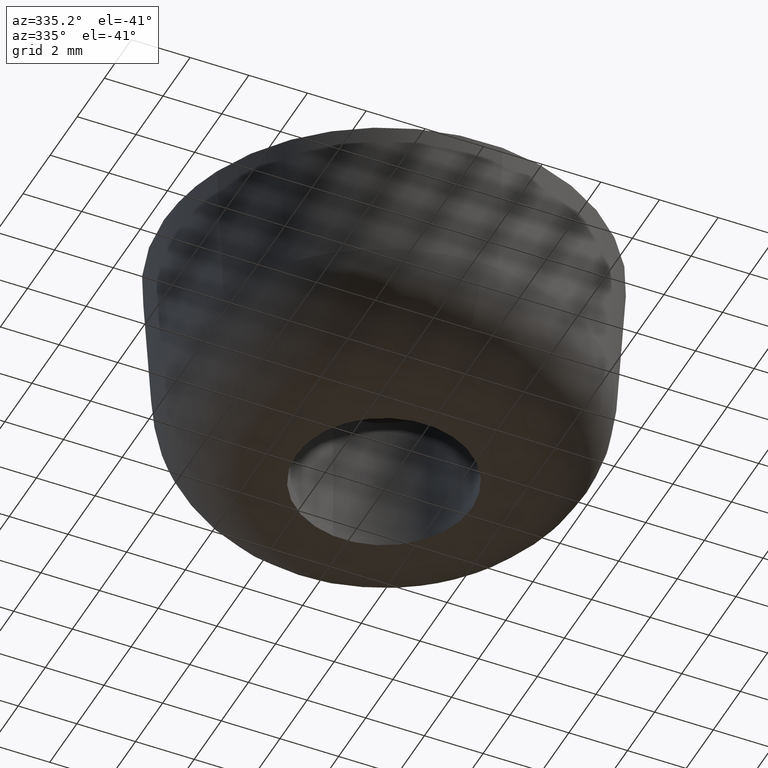
[diagram: clean part render]
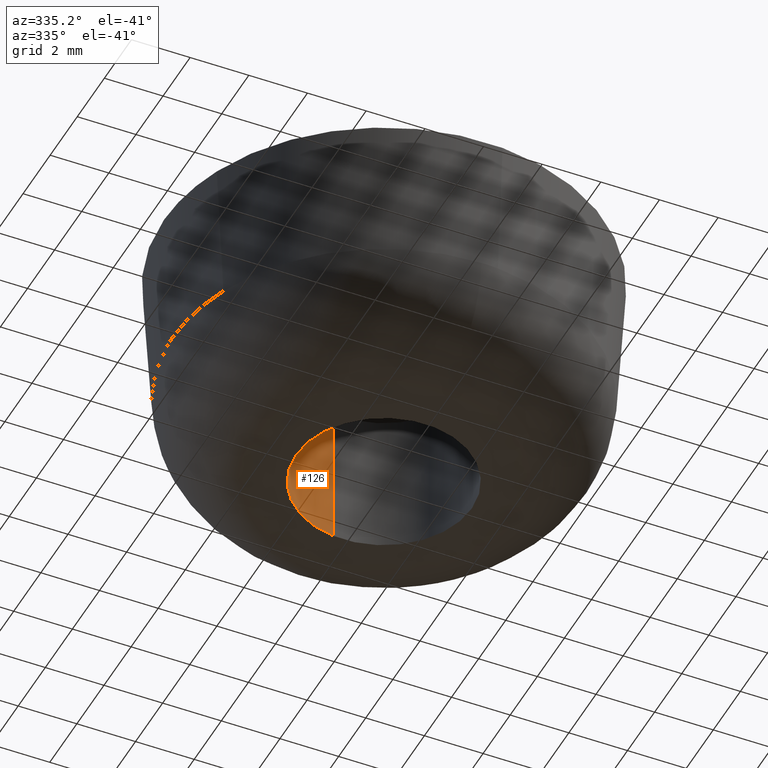
[diagram: same view with one face highlighted and labeled with its STEP entity id]
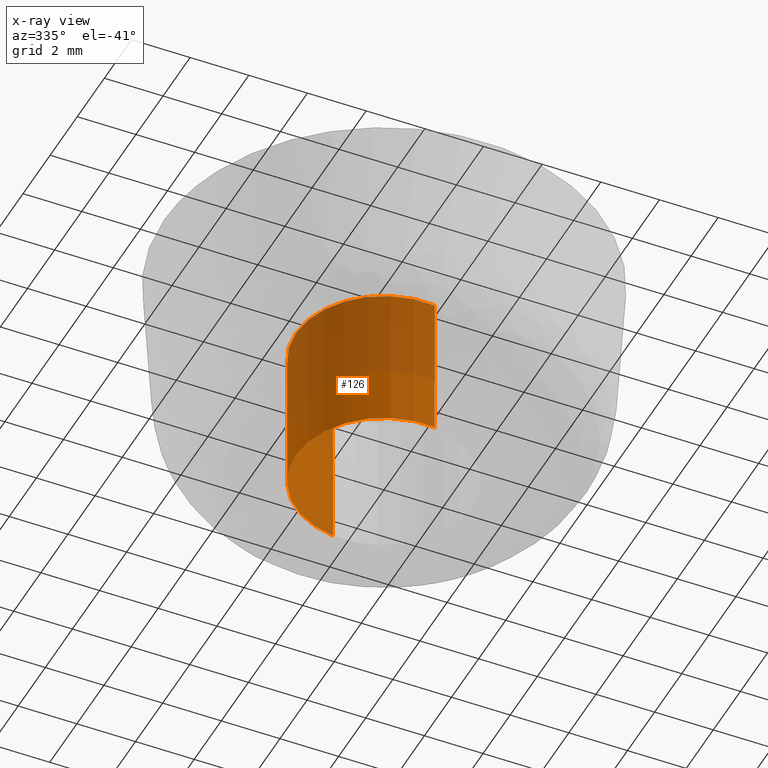
[diagram: x-ray of the same camera — body ghosted, the highlighted face saturated]
A machine part, auxiliary view. The second image highlights one B-rep face of the part: STEP entity #126.
The next image is the same camera in x-ray: the body ghosted, the highlighted face saturated — about 53% of this face is hidden behind the body in this view.
In plain terms, the highlighted cylindrical surface (partial cylindrical patch) has radius 3 mm, axis along (0, 0, 1).
Its self-contained STEP definition (entity closure, byte-faithful):
#126=ADVANCED_FACE('',(#283),#282,.F.);
#282=CYLINDRICAL_SURFACE('',#464,3.00000000000E+000);
#283=FACE_OUTER_BOUND('',#465,.T.);
#461=CARTESIAN_POINT('',(3.64937661851E-014,4.60760898924E-015,5.12500000000E+000));
#462=DIRECTION('',(1.40314912240E-014,1.51878360787E-015,1.00000000000E+000));
#463=DIRECTION('',(1.18034234657E-001,-9.93009526364E-001,-1.48029736617E-016));
#464=AXIS2_PLACEMENT_3D('',#461,#462,#463);
#465=EDGE_LOOP('',(#631,#632,#633,#634,#635,#636));
#631=ORIENTED_EDGE('',*,*,#736,.F.);
#632=ORIENTED_EDGE('',*,*,#738,.F.);
#633=ORIENTED_EDGE('',*,*,#739,.F.);
#634=ORIENTED_EDGE('',*,*,#715,.T.);
#635=ORIENTED_EDGE('',*,*,#717,.T.);
#636=ORIENTED_EDGE('',*,*,#740,.T.);
#715=EDGE_CURVE('',#974,#975,#976,.T.);
#717=EDGE_CURVE('',#975,#982,#989,.T.);
#736=EDGE_CURVE('',#1121,#1122,#1123,.T.);
#738=EDGE_CURVE('',#1129,#1121,#1136,.T.);
#739=EDGE_CURVE('',#974,#1129,#1142,.T.);
#740=EDGE_CURVE('',#982,#1122,#1148,.T.);
#974=VERTEX_POINT('',#1352);
#975=VERTEX_POINT('',#1353);
#976=CIRCLE('',#1357,2.99999999999E+000);
#982=VERTEX_POINT('',#1358);
#989=CIRCLE('',#1366,2.99999999999E+000);
#1121=VERTEX_POINT('',#1457);
#1122=VERTEX_POINT('',#1458);
#1123=CIRCLE('',#1462,2.99999950427E+000);
#1129=VERTEX_POINT('',#1463);
#1136=CIRCLE('',#1471,2.99999950427E+000);
#1142=(BOUNDED_CURVE() B_SPLINE_CURVE(1,(#1472,#1473),.UNSPECIFIED.,.F.,.F.) B_SPLINE_CURVE_WITH_KNOTS((2,2),(8.33333383004E-002,9.16666664635E-001),.UNSPECIFIED.) CURVE() GEOMETRIC_REPRESENTATION_ITEM() RATIONAL_B_SPLINE_CURVE((1.00000000000E+000,1.00000000000E+000)) REPRESENTATION_ITEM('') );
#1148=(BOUNDED_CURVE() B_SPLINE_CURVE(1,(#1474,#1475),.UNSPECIFIED.,.F.,.F.) B_SPLINE_CURVE_WITH_KNOTS((2,2),(8.33333333333E-002,9.16666666667E-001),.UNSPECIFIED.) CURVE() GEOMETRIC_REPRESENTATION_ITEM() RATIONAL_B_SPLINE_CURVE((7.50000000000E-001,7.50000000000E-001)) REPRESENTATION_ITEM('') );
#1352=CARTESIAN_POINT('',(3.54101614556E-001,-2.97902870857E+000,8.80027462343E-016));
#1353=CARTESIAN_POINT('',(-2.99999999999E+000,-1.33226762955E-015,8.01356165399E-015));
#1354=CARTESIAN_POINT('',(6.96820379176E-012,3.16680015544E-012,6.60074611712E-016));
#1355=DIRECTION('',(-2.45116234743E-015,-3.65190638225E-016,-1.00000000000E+000));
#1356=DIRECTION('',(-1.00000000000E+000,-1.05565556296E-012,2.45116234743E-015));
#1357=AXIS2_PLACEMENT_3D('',#1354,#1355,#1356);
#1358=CARTESIAN_POINT('',(-3.54617583606E-001,2.97896733271E+000,4.41408898916E-016));
#1363=CARTESIAN_POINT('',(6.96820379176E-012,3.16680015544E-012,6.60074611712E-016));
#1364=DIRECTION('',(-2.45116234743E-015,-3.65190638225E-016,-1.00000000000E+000));
#1365=DIRECTION('',(-1.00000000000E+000,-1.05565556296E-012,2.45116234743E-015));
#1366=AXIS2_PLACEMENT_3D('',#1363,#1364,#1365);
#1457=CARTESIAN_POINT('',(-2.99999900854E+000,-1.54484068241E-013,5.00000000000E+000));
#1458=CARTESIAN_POINT('',(-3.54617504757E-001,2.97896631753E+000,5.00000000000E+000));
#1459=CARTESIAN_POINT('',(4.95728056604E-007,-4.66334389104E-007,5.00000000000E+000));
#1460=DIRECTION('',(8.88178615278E-016,-3.14018491737E-016,-1.00000000000E+000));
#1461=DIRECTION('',(-1.00000000000E+000,1.55444771371E-007,-8.88178664090E-016));
#1462=AXIS2_PLACEMENT_3D('',#1459,#1460,#1461);
#1463=CARTESIAN_POINT('',(3.54101617573E-001,-2.97902873427E+000,5.00000000000E+000));
#1468=CARTESIAN_POINT('',(4.95728056604E-007,-4.66334389104E-007,5.00000000000E+000));
#1469=DIRECTION('',(8.88178615278E-016,-3.14018491737E-016,-1.00000000000E+000));
#1470=DIRECTION('',(-1.00000000000E+000,1.55444771371E-007,-8.88178664090E-016));
#1471=AXIS2_PLACEMENT_3D('',#1468,#1469,#1470);
#1472=CARTESIAN_POINT('',(3.54102703970E-001,-2.97902857909E+000,2.98022821421E-008));
#1473=CARTESIAN_POINT('',(3.54102703970E-001,-2.97902857909E+000,4.99999998781E+000));
#1474=CARTESIAN_POINT('',(-3.54102703970E-001,2.97902857909E+000,-9.25185853854E-015));
#1475=CARTESIAN_POINT('',(-3.54102703970E-001,2.97902857909E+000,5.00000000000E+000));